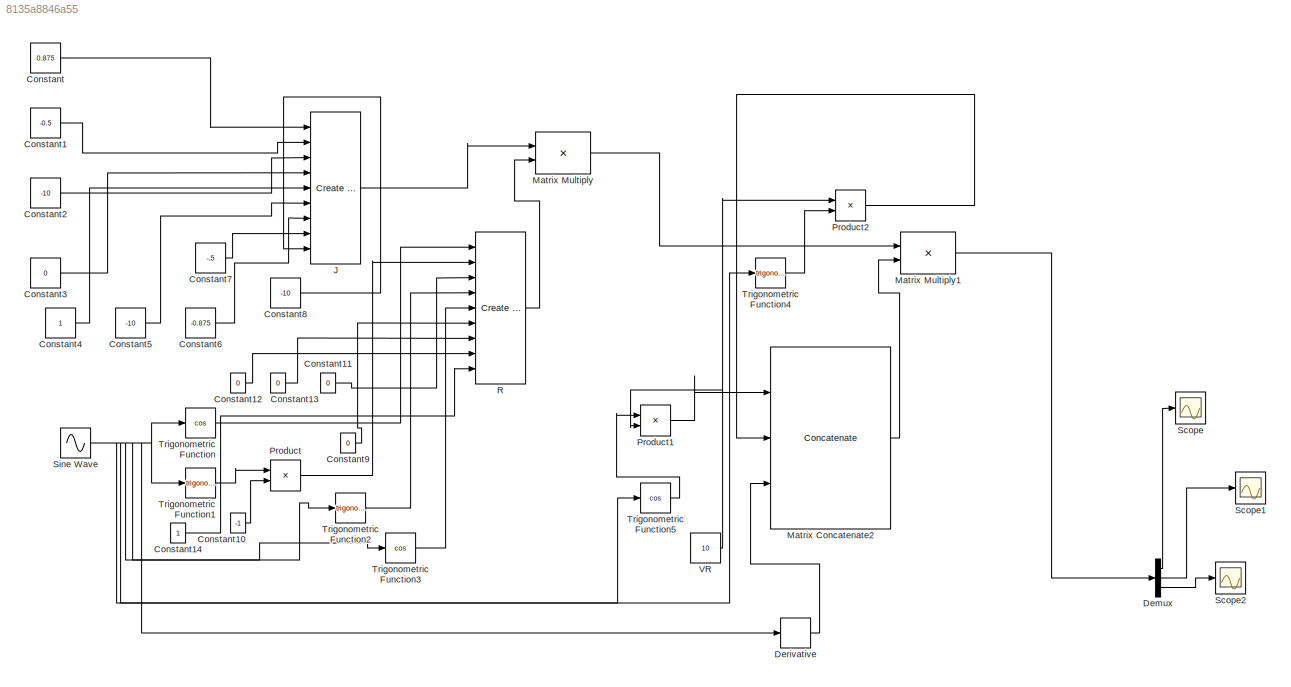
MODEL slx_8135a8846a55
KIND model
BLOCK [Constant] Constant
  Value = 0.875
BLOCK [Constant] Constant1
  Value = -0.5
BLOCK [Constant] Constant10
  Value = -1
BLOCK [Constant] Constant11
  Value = 0
BLOCK [Constant] Constant12
  Value = 0
BLOCK [Constant] Constant13
  Value = 0
BLOCK [Constant] Constant14
BLOCK [Constant] Constant2
  Value = -10
BLOCK [Constant] Constant3
  Value = 0
BLOCK [Constant] Constant4
BLOCK [Constant] Constant5
  Value = -10
BLOCK [Constant] Constant6
  Value = -0.875
BLOCK [Constant] Constant7
  Value = -.5
BLOCK [Constant] Constant8
  Value = -10
BLOCK [Constant] Constant9
  Value = 0
BLOCK [Demux] Demux
  DisplayOption = bar
  Outputs = 3
  Ports = [1, 3]
BLOCK [Derivative] Derivative
BLOCK [Reference] J  REF=aerolibutil/Create 3x3 Matrix
  Ports = [9, 1]
  SourceBlock = aerolibutil/Create 3x3 Matrix
  SourceType = Create 3x3 Matrix
BLOCK [Concatenate] Matrix Concatenate2
  Mode = Multidimensional array
  NumInputs = 3
  Ports = [3, 1]
BLOCK [Product] Matrix Multiply
  InputSameDT = off
  Multiplication = Matrix(*)
  OutDataTypeStr = Inherit: Inherit via internal rule
  Ports = [2, 1]
  RndMeth = Floor
  SaturateOnIntegerOverflow = off
BLOCK [Product] Matrix Multiply1
  InputSameDT = off
  Multiplication = Matrix(*)
  OutDataTypeStr = Inherit: Inherit via internal rule
  Ports = [2, 1]
  RndMeth = Floor
  SaturateOnIntegerOverflow = off
BLOCK [Product] Product
  InputSameDT = off
  OutDataTypeStr = Inherit: Inherit via internal rule
  Ports = [2, 1]
  RndMeth = Floor
  SaturateOnIntegerOverflow = off
BLOCK [Product] Product1
  InputSameDT = off
  OutDataTypeStr = Inherit: Inherit via internal rule
  Ports = [2, 1]
  RndMeth = Floor
  SaturateOnIntegerOverflow = off
BLOCK [Product] Product2
  InputSameDT = off
  OutDataTypeStr = Inherit: Inherit via internal rule
  Ports = [2, 1]
  RndMeth = Floor
  SaturateOnIntegerOverflow = off
BLOCK [Reference] R  REF=aerolibutil/Create 3x3 Matrix
  Ports = [9, 1]
  SourceBlock = aerolibutil/Create 3x3 Matrix
  SourceType = Create 3x3 Matrix
BLOCK [Scope] Scope
  DataFormat = StructureWithTime
  Floating = off
  NumInputPorts = 1
  Ports = [1]
  SampleTime = 0
  ShowLegends = off
BLOCK [Scope] Scope1
  DataFormat = StructureWithTime
  Floating = off
  NumInputPorts = 1
  Ports = [1]
  SampleTime = 0
  SaveName = ScopeData1
  ShowLegends = off
BLOCK [Scope] Scope2
  DataFormat = StructureWithTime
  Floating = off
  NumInputPorts = 1
  Ports = [1]
  SampleTime = 0
  SaveName = ScopeData2
  ShowLegends = off
BLOCK [Sin] Sine Wave
  Amplitude = 10
  Ports = [0, 1]
  SampleTime = 0
BLOCK [Trigonometry] Trigonometric Function
  Operator = cos
  Ports = [1, 1]
BLOCK [Trigonometry] Trigonometric Function1
  Ports = [1, 1]
BLOCK [Trigonometry] Trigonometric Function2
  Ports = [1, 1]
BLOCK [Trigonometry] Trigonometric Function3
  Operator = cos
  Ports = [1, 1]
BLOCK [Trigonometry] Trigonometric Function4
  Ports = [1, 1]
BLOCK [Trigonometry] Trigonometric Function5
  Operator = cos
  Ports = [1, 1]
BLOCK [Constant] VR
  Value = 10
LINE Constant10:1 -> Product:2
LINE Constant11:1 -> R:3
LINE Constant12:1 -> R:8
LINE Constant13:1 -> R:7
LINE Constant14:1 -> R:9
LINE Constant1:1 -> J:2
LINE Constant2:1 -> J:3
LINE Constant3:1 -> J:4
LINE Constant4:1 -> J:5
LINE Constant5:1 -> J:6
LINE Constant6:1 -> J:7
LINE Constant7:1 -> J:8
LINE Constant8:1 -> J:9
LINE Constant9:1 -> R:6
LINE Constant:1 -> J:1
LINE Demux:1 -> Scope:1
LINE Demux:2 -> Scope1:1
LINE Demux:3 -> Scope2:1
LINE Derivative:1 -> Matrix Concatenate2:3
LINE J:1 -> Matrix Multiply:1
LINE Matrix Concatenate2:1 -> Matrix Multiply1:2
LINE Matrix Multiply1:1 -> Demux:1
LINE Matrix Multiply:1 -> Matrix Multiply1:1
LINE Product1:1 -> Matrix Concatenate2:1
LINE Product2:1 -> Matrix Concatenate2:2
LINE Product:1 -> R:2
LINE R:1 -> Matrix Multiply:2
NET Sine Wave:1 -> Derivative:1, Trigonometric Function1:1, Trigonometric Function2:1, Trigonometric Function3:1, Trigonometric Function4:1, Trigonometric Function5:1, Trigonometric Function:1
LINE Trigonometric Function1:1 -> Product:1
LINE Trigonometric Function2:1 -> R:4
LINE Trigonometric Function3:1 -> R:5
LINE Trigonometric Function4:1 -> Product2:2
LINE Trigonometric Function5:1 -> Product1:1
LINE Trigonometric Function:1 -> R:1
NET VR:1 -> Product1:2, Product2:1
note: NET lines group one-source signal fan-out (src -> all destinations, sorted); 1:1 wires keep LINE
